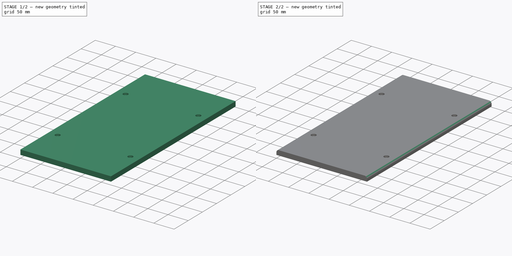
[diagram: build sequence overview — one tinted view per stage of 2, left to right]
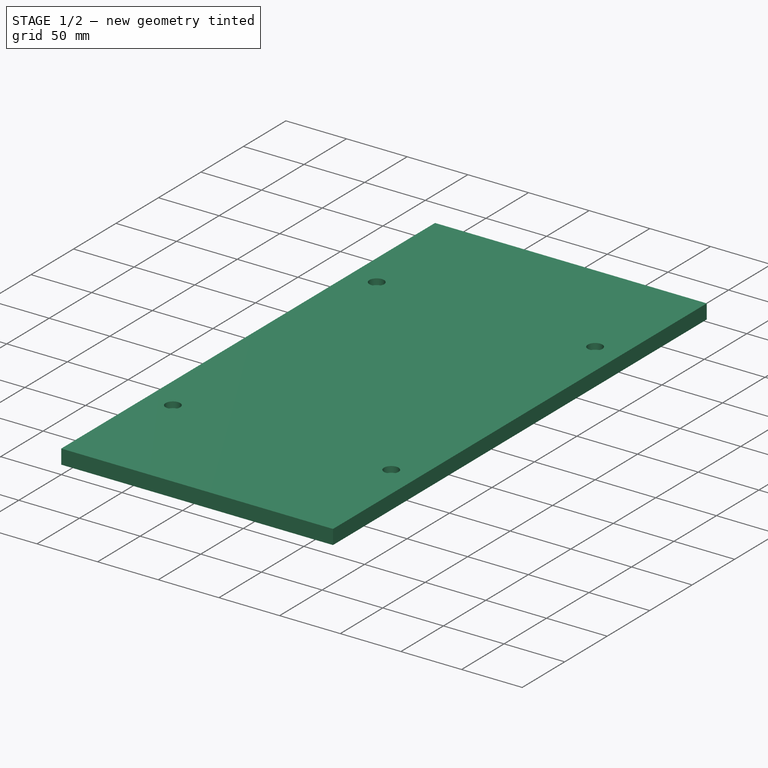
[diagram: stage 1 of 2 — iso view after this stage's code; geometry added in this stage tinted green]
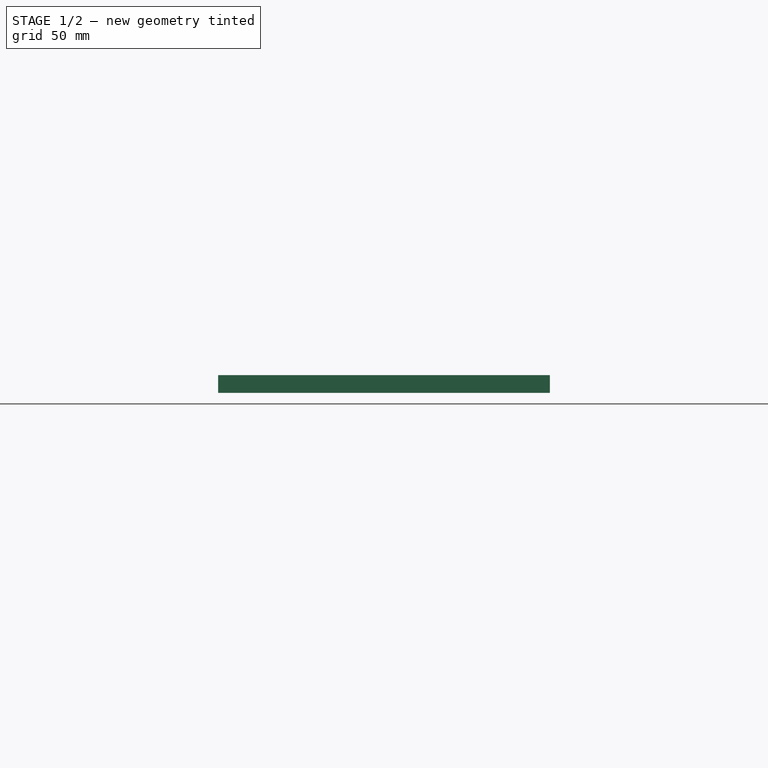
[diagram: stage 1 of 2 — front view after this stage's code; geometry added in this stage tinted green]
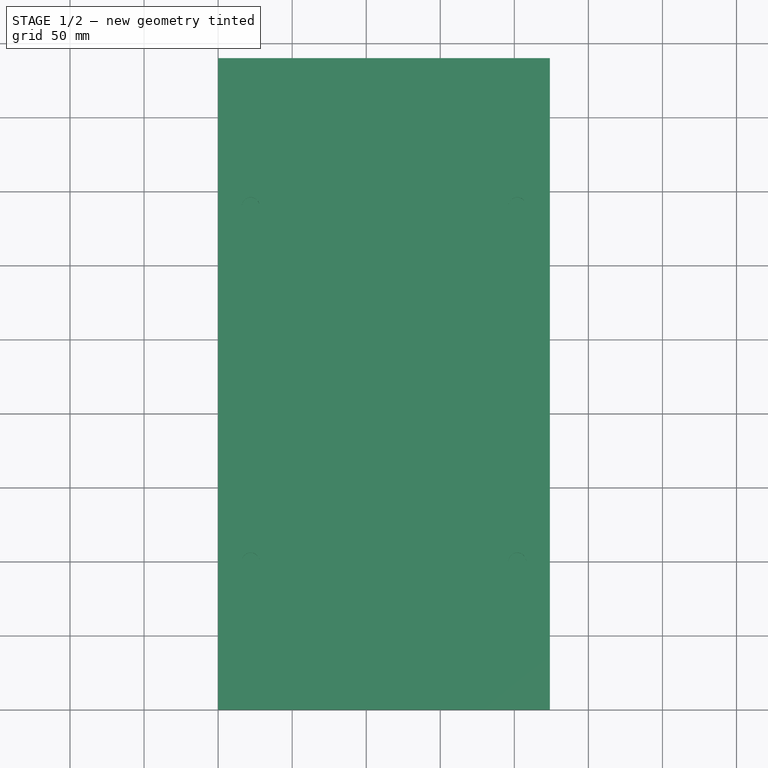
[diagram: stage 1 of 2 — top view after this stage's code; geometry added in this stage tinted green]
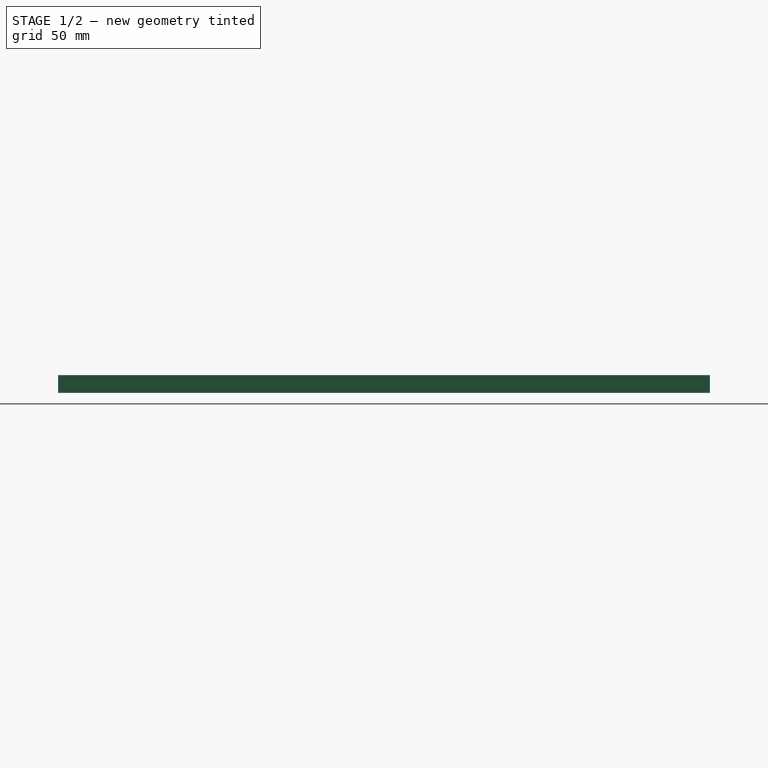
[diagram: stage 1 of 2 — right view after this stage's code; geometry added in this stage tinted green]
FCSTD DOCUMENT  (FreeCAD 0.17R9796 (Git))
Label: frontback
License: All rights reserved
LicenseURL: http://en.wikipedia.org/wiki/All_rights_reserved
objects: Sketcher::SketchObject×3, PartDesign::Pocket×2, PartDesign::Pad×1, PartDesign::Fillet×1, PartDesign::Body×1, Part::Feature×1
note: 12 computed .brp shape members not serialized (recipe doc carries the construction recipe); baked Part::Feature solids carry a one-line shape summary decoded from their .brp

FEATURE [Sketcher::SketchObject] Sketch
  MapMode = 5
  Support = -> [XY_Plane]
  sketch-geometry (4):
    g0: LineSegment StartX=0 StartY=440 StartZ=0 EndX=224 EndY=440 EndZ=0
    g1: LineSegment StartX=224 StartY=440 StartZ=0 EndX=224 EndY=0 EndZ=0
    g2: LineSegment StartX=224 StartY=0 StartZ=0 EndX=0 EndY=0 EndZ=0
    g3: LineSegment StartX=0 StartY=0 StartZ=0 EndX=0 EndY=440 EndZ=0
  constraints (11):
    c: Coincident(g0,g1)
    c: Coincident(g1,g2)
    c: Coincident(g2,g3)
    c: Coincident(g3,g0)
    c: Horizontal(g0)
    c: Horizontal(g2)
    c: Vertical(g1)
    c: Vertical(g3)
    c: Coincident(g2,g-1)
    c: DistanceX(g-1,g1) = 224
    c: DistanceY(g-1,g0) = 440
FEATURE [PartDesign::Pad] Pad
  Length = 12
  Length2 = 100
  Profile = -> Sketch
  Type = 0
FEATURE [Sketcher::SketchObject] Sketch001
  MapMode = 5
  Placement = pos=(0,0,12) rot=(0,0,1;0rad)
  Support = -> [Pad]
  sketch-geometry (4):
    g0: Circle CenterX=22 CenterY=340 CenterZ=0 NormalX=0 NormalY=0 NormalZ=1 Radius=6
    g1: Circle CenterX=22 CenterY=100 CenterZ=0 NormalX=0 NormalY=0 NormalZ=1 Radius=6
    g2: Circle CenterX=202 CenterY=340 CenterZ=0 NormalX=0 NormalY=0 NormalZ=1 Radius=6
    g3: Circle CenterX=202 CenterY=100 CenterZ=0 NormalX=0 NormalY=0 NormalZ=1 Radius=6
  constraints (12):
    c: DistanceX(g-1,g1) = 22
    c: DistanceX(g-1,g0) = 22
    c: DistanceX(g-1,g2) = 202
    c: DistanceX(g-1,g3) = 202
    c: DistanceY(g-1,g1) = 100
    c: DistanceY(g-1,g3) = 100
    c: DistanceY(g-1,g0) = 340
    c: DistanceY(g-1,g2) = 340
    c: Radius(g0) = 6
    c: Equal(g0,g1)
    c: Equal(g0,g2)
    c: Equal(g0,g3)
FEATURE [PartDesign::Pocket] Pocket
  BaseFeature = -> Pad
  Length = 5
  Profile = -> Sketch001
  Type = 0
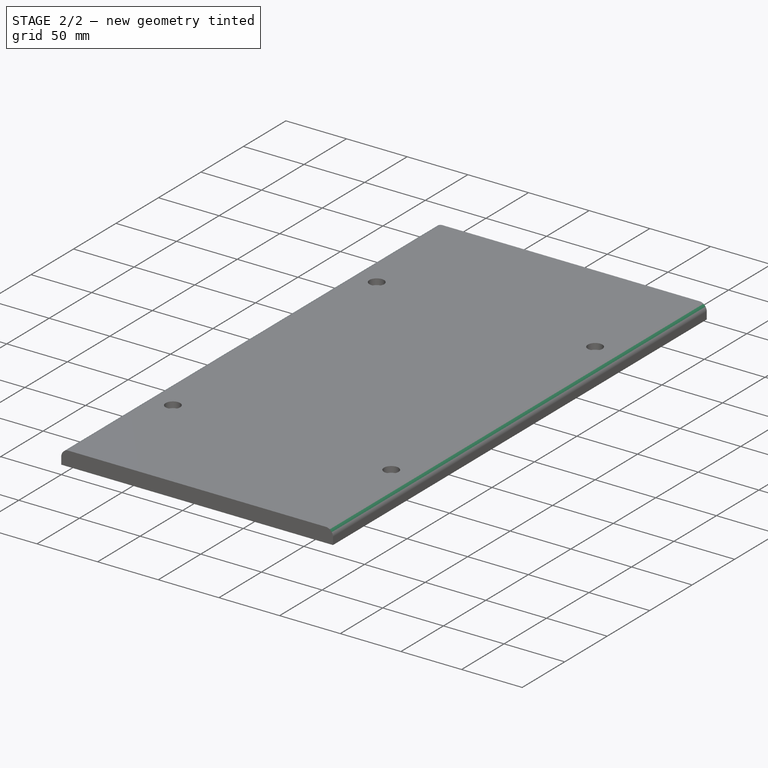
[diagram: stage 2 of 2 — iso view after this stage's code; geometry added in this stage tinted green]
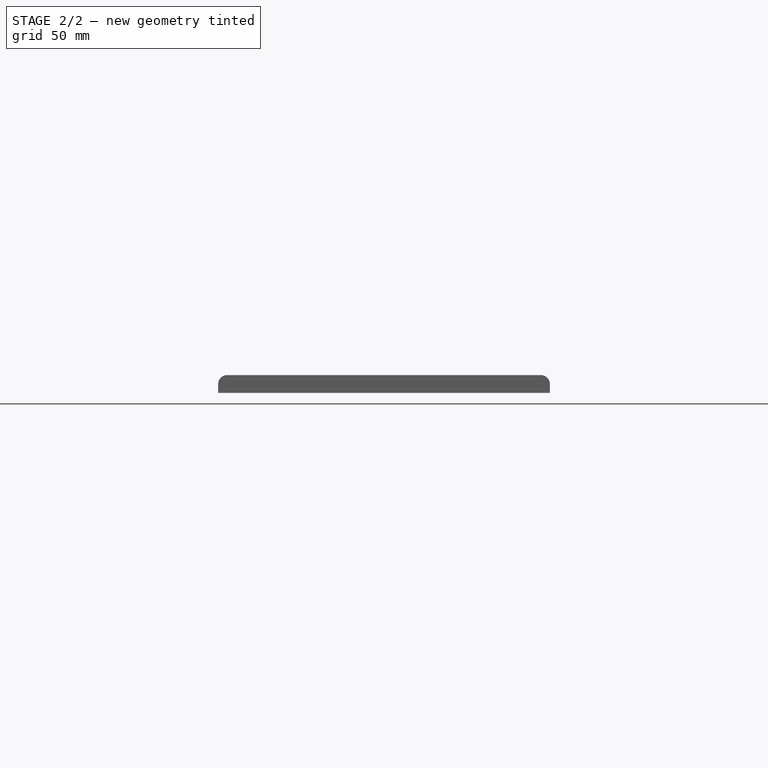
[diagram: stage 2 of 2 — front view after this stage's code; geometry added in this stage tinted green]
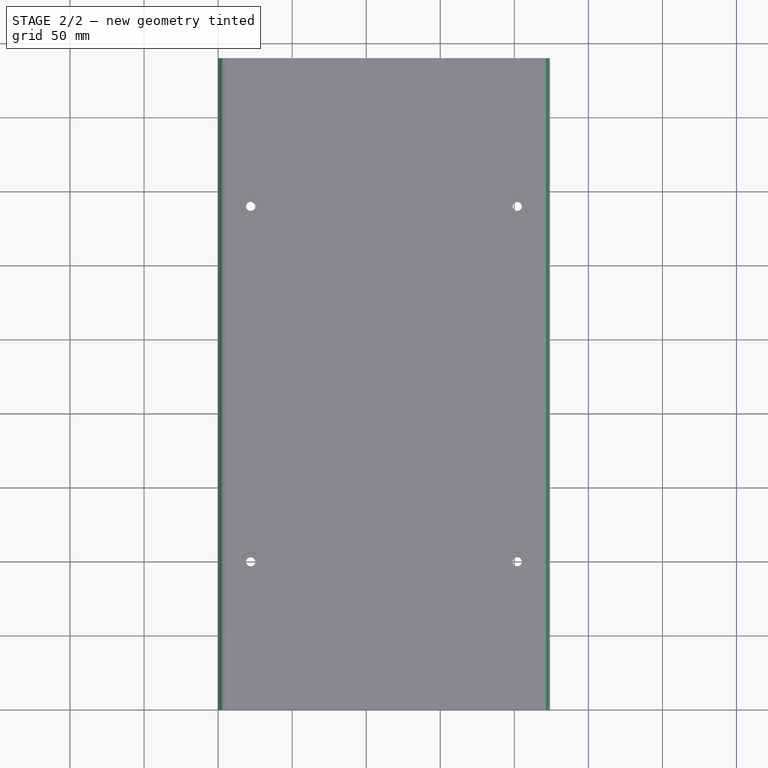
[diagram: stage 2 of 2 — top view after this stage's code; geometry added in this stage tinted green]
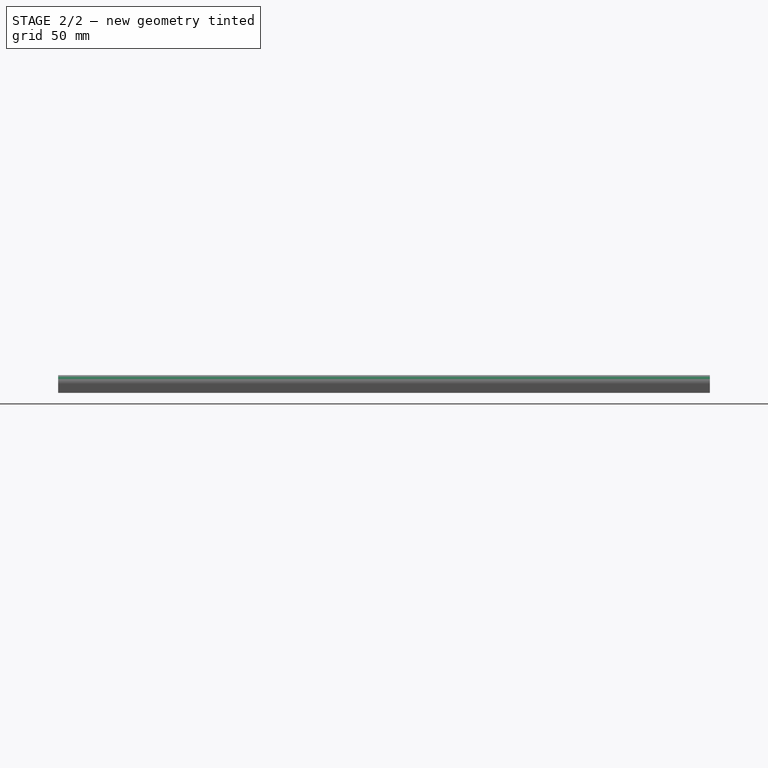
[diagram: stage 2 of 2 — right view after this stage's code; geometry added in this stage tinted green]
FEATURE [Sketcher::SketchObject] Sketch002
  MapMode = 5
  Placement = pos=(0,0,0) rot=(1,0,0;3.14159rad)
  Support = -> [Pocket]
  sketch-geometry (4):
    g0: Circle CenterX=22 CenterY=-100 CenterZ=0 NormalX=0 NormalY=0 NormalZ=1 Radius=3.1
    g1: Circle CenterX=22 CenterY=-340 CenterZ=0 NormalX=0 NormalY=0 NormalZ=1 Radius=3.1
    g2: Circle CenterX=202 CenterY=-100 CenterZ=0 NormalX=0 NormalY=0 NormalZ=1 Radius=3.1
    g3: Circle CenterX=202 CenterY=-340 CenterZ=0 NormalX=0 NormalY=0 NormalZ=1 Radius=3.1
  constraints (12):
    c: DistanceX(g-1,g0) = 22
    c: DistanceX(g-1,g1) = 22
    c: DistanceX(g-1,g2) = 202
    c: DistanceX(g-1,g3) = 202
    c: DistanceY(g0,g-1) = 100
    c: DistanceY(g1,g-1) = 340
    c: DistanceY(g2,g-1) = 100
    c: DistanceY(g3,g-1) = 340
    c: Radius(g0) = 3.1
    c: Equal(g0,g1)
    c: Equal(g0,g3)
    c: Equal(g0,g2)
FEATURE [PartDesign::Pocket] Pocket001
  BaseFeature = -> Pocket
  Length = 7
  Profile = -> Sketch002
  Type = 0
FEATURE [PartDesign::Fillet] Fillet
  Base = -> Pocket001 [Edge7,Edge10]
  BaseFeature = -> Pocket001
  Radius = 6
FEATURE [PartDesign::Body] Body
  Group = -> [Sketch,Pad,Sketch001,Pocket,Sketch002,Pocket001,Fillet]
  Origin = -> BodyOrigin
  Tip = -> Fillet
FEATURE [Part::Feature] Body001
  shape: bbox 224 x 440 x 12 mm, 20 faces (baked)
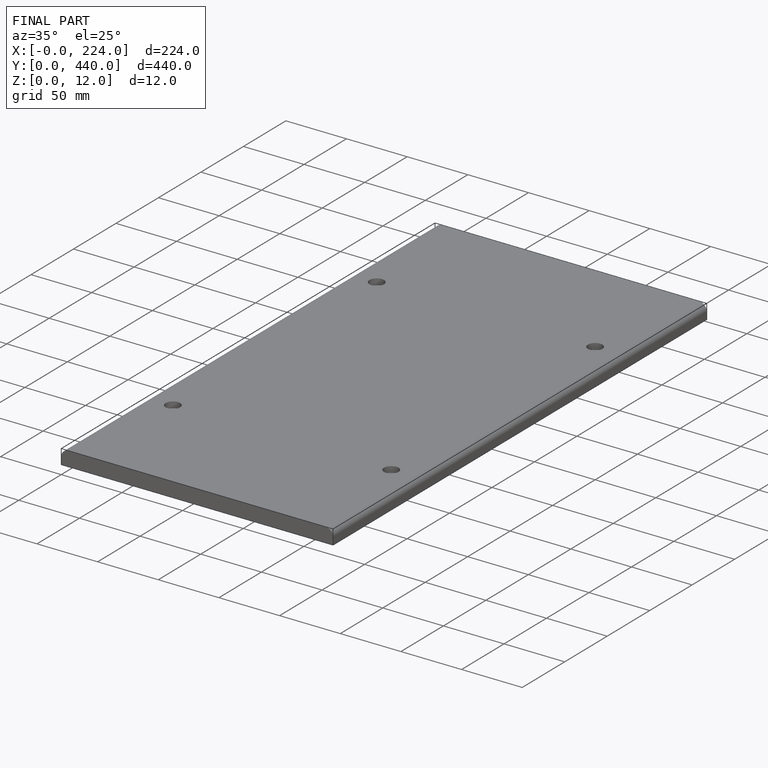
[diagram: finished part — iso view with bounding-box wireframe]
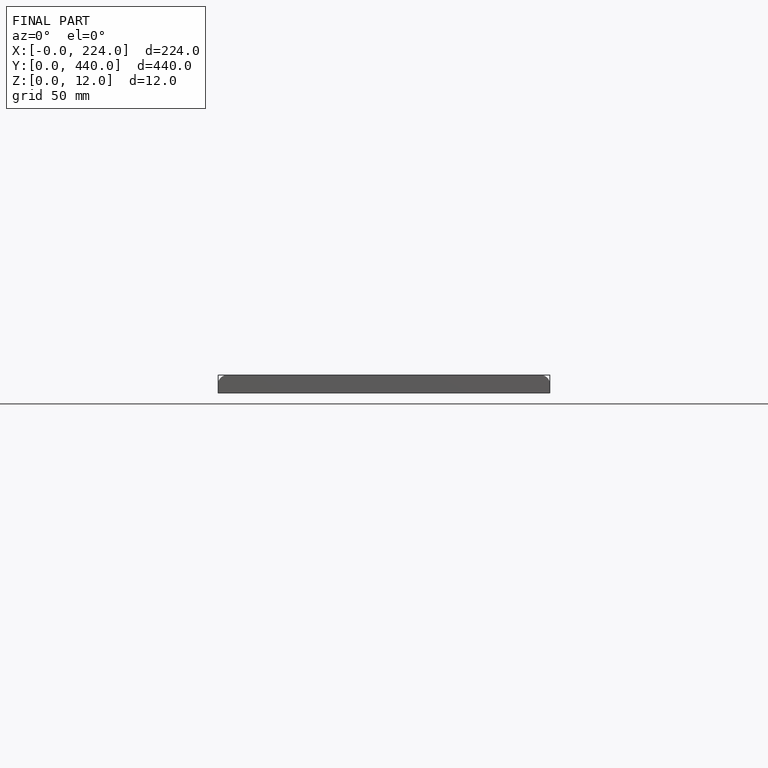
[diagram: finished part — front view with bounding-box wireframe]
